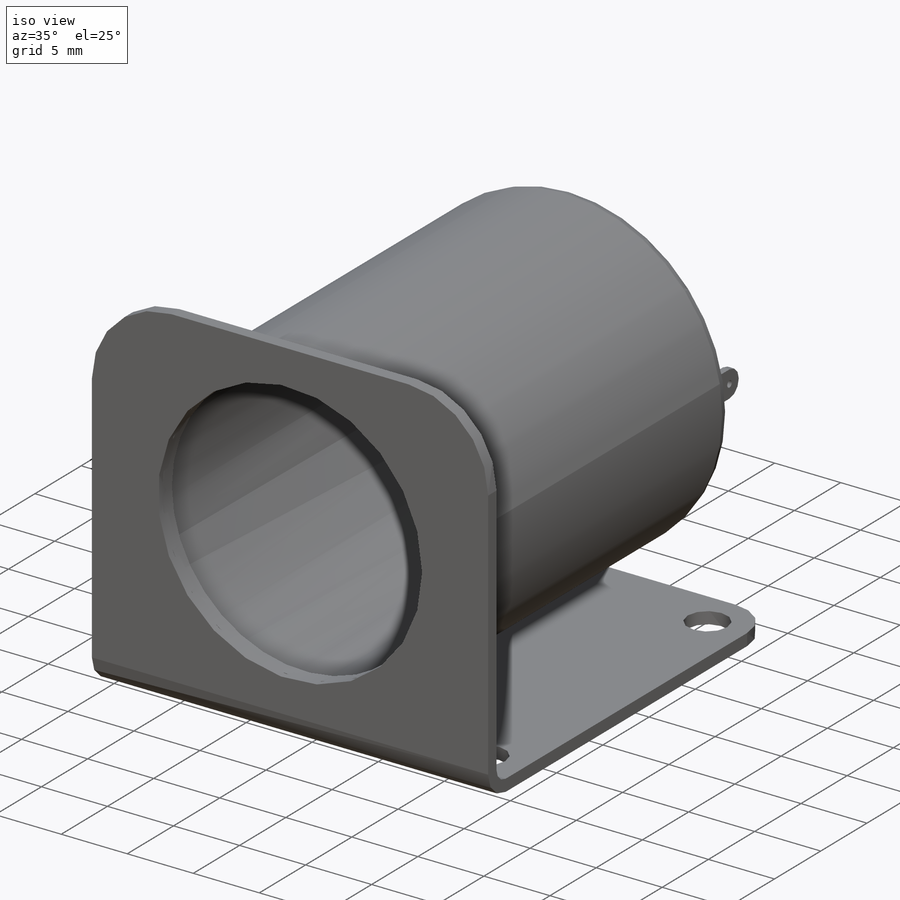
[diagram: iso view]
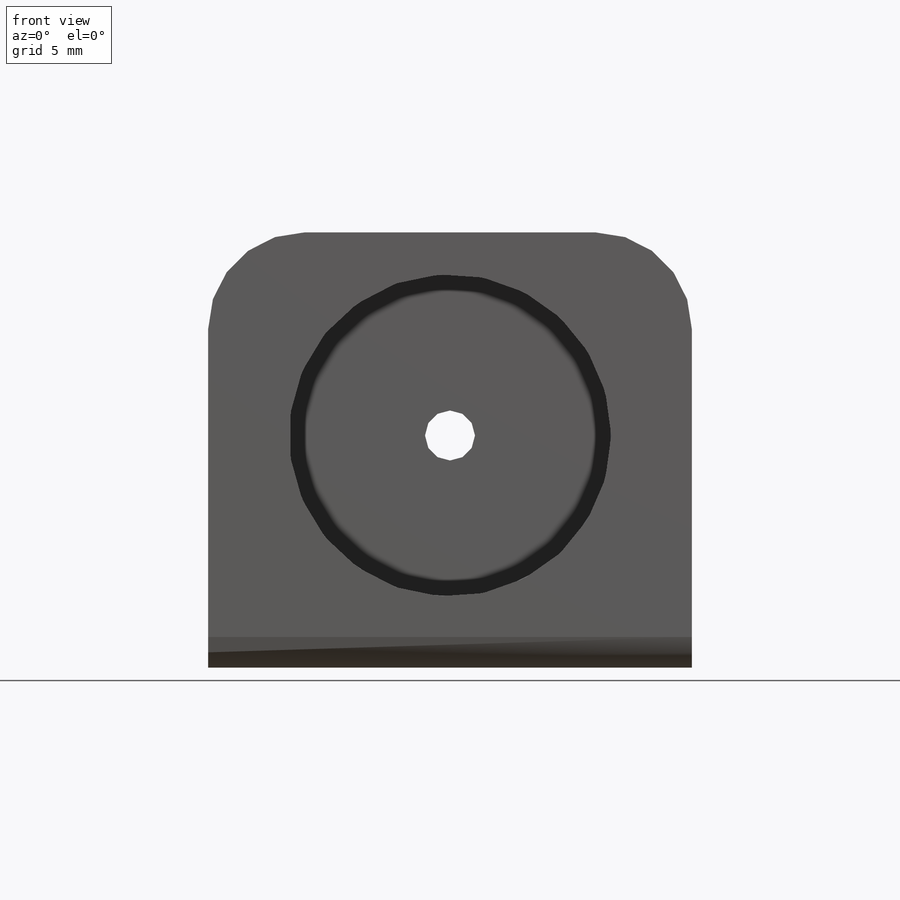
[diagram: front view]
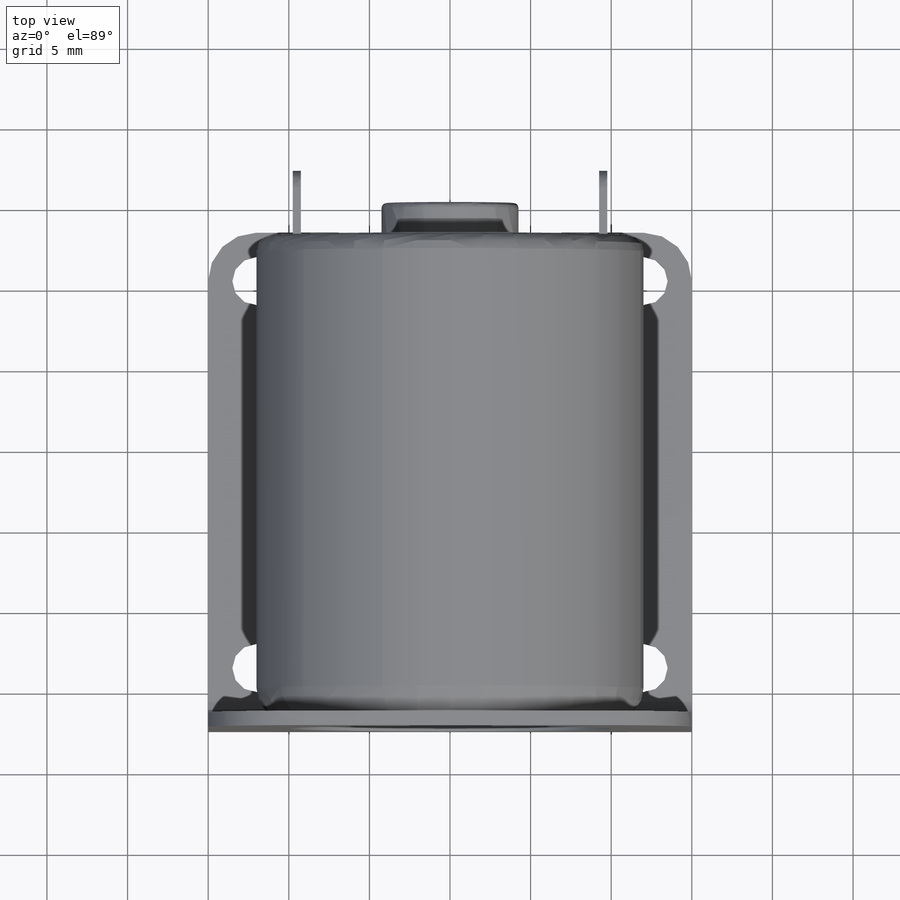
[diagram: top view]
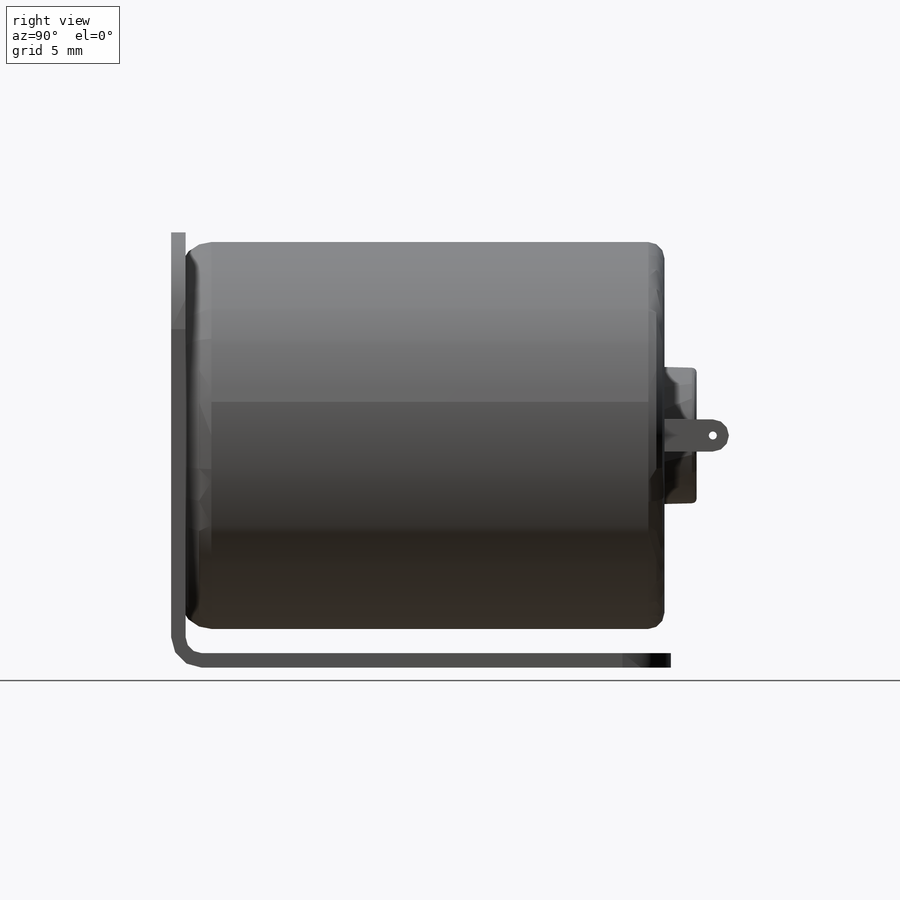
[diagram: right view]
SOLIDWORKS PART (.sldprt)
format: sldprt  version: not decoded by parser v0  size: 340,480 bytes
history: native  units: mm
features: sketch x10, fillet x7, extrude x3, cut_extrude x3, sheet_metal_op x2, material x1, plane x1, shell x1, hole x1 + 1 further entry (+11 scaffold rows collapsed)
feature tree (41):
  scaffold x11  (default folders/planes/origin — collapsed)
  material  "Material <not specified>"
  plane  "Plane2"  Offset=33.1mm
  sketch  "Sketch6"  dims[D1=24.0mm]
  extrude  "Extrude5"  Depth=30.1mm
  fillet  "Fillet1"  Radius=2mm
  fillet  "Fillet3"  Radius=1mm
  sketch  "Sketch4"  dims[D5=1.0mm D1=26.1mm D2=30.1mm D3=16.5mm D4=13.5mm]
  shell  "Shell4"  Thickness=1mm
  sheet_metal_op  "Sheet-Metal2"
  sheet_metal_op  "Base-Flange2"
  sketch  "Sketch10"  dims[D1=8.5mm]
  extrude  "Extrude8"  Depth=2mm
  fillet  "Fillet4"  Radius=0.3mm
  hole  "Ø3.0 (3) Diameter Hole1"  Diameter=3mm Depth=0.9mm
  sketch  "Sketch14"  dims[D1=24.0mm D2=24.0mm D3=3.0mm D4=3.0mm]
  sketch  "Sketch15"  dims[hole-wizard template sketch: 60 standard entries collapsed; hole parameters kept: c18.Thru Hole Depth=0.9mm]
  fillet  "Fillet6"  Radius=6mm
  fillet  "Fillet7"  Radius=3mm
  sketch  "Sketch16"  dims[D1=2.0mm D2=0.5mm D3=19.0mm D4=9.5mm]
  extrude  "Extrude10"  Depth=4mm
  fillet  "Fillet8"  [1 undecoded]
  fillet  "Fillet9"  [1 undecoded]
  sketch  "Sketch17"  dims[D1=0.5mm]
  cut_extrude  "Extrude11"  [1 undecoded]
  sketch  "Sketch19"  dims[D1=3.1mm]
  cut_extrude  "Extrude13"  [1 undecoded]
  sketch  "Sketch21"  dims[D1=20.0mm]
  cut_extrude  "Extrude14"  [1 undecoded]
  "Flat-Pattern2"
  sketch  "Bend-Lines2"
decode coverage: 19 of 27 modeling features carry decoded parameters; 1 rows unclassified (native names shown)
note: ~ marks probable driven/reference dimensions
note: 5 parameter values undecoded
summary: no parameter record found for 5 features
note: suppression state not decoded; provenance and decode notes live in map.json
